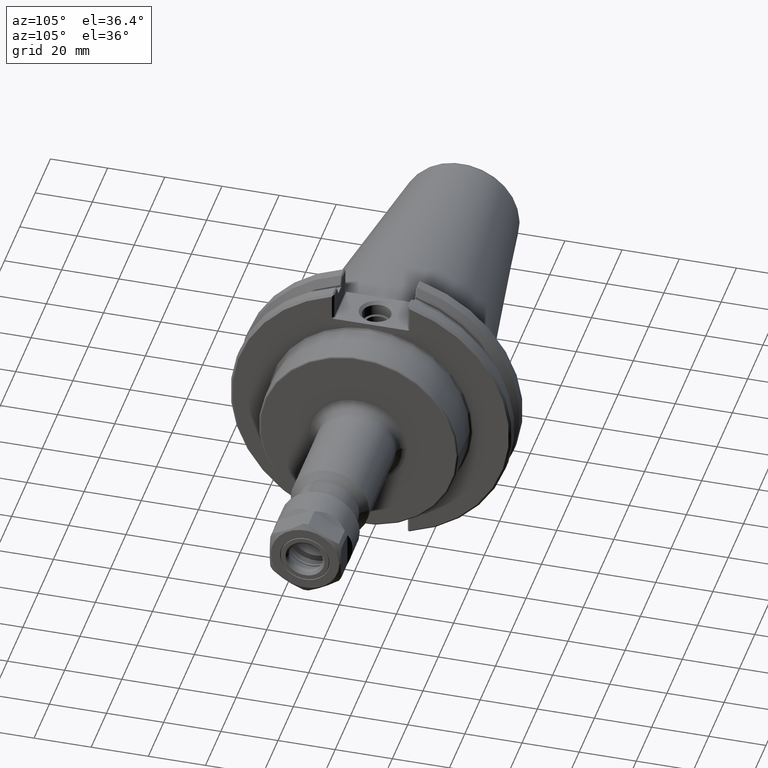
[diagram: clean part render]
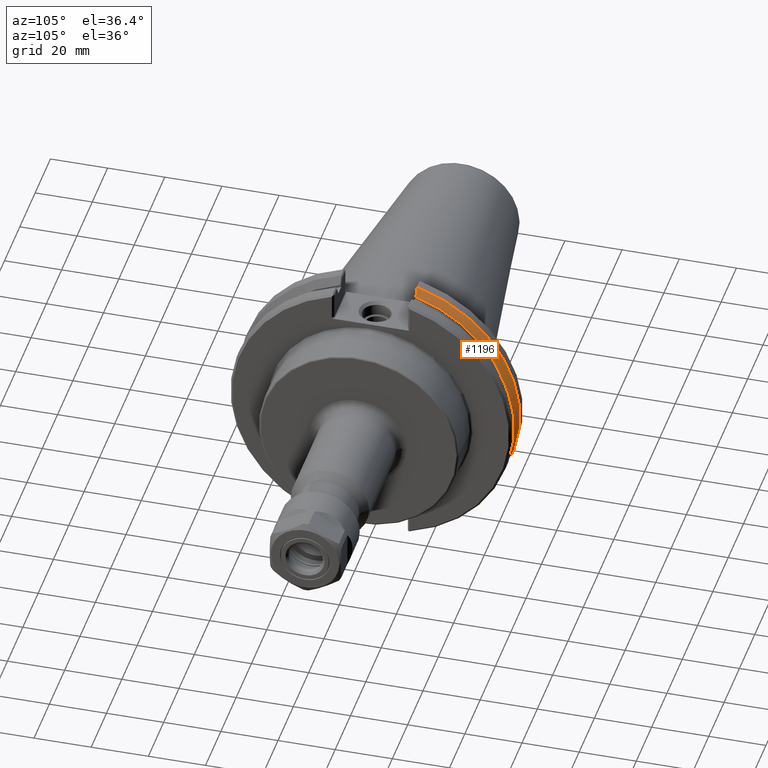
[diagram: same view with one face highlighted and labeled with its STEP entity id]
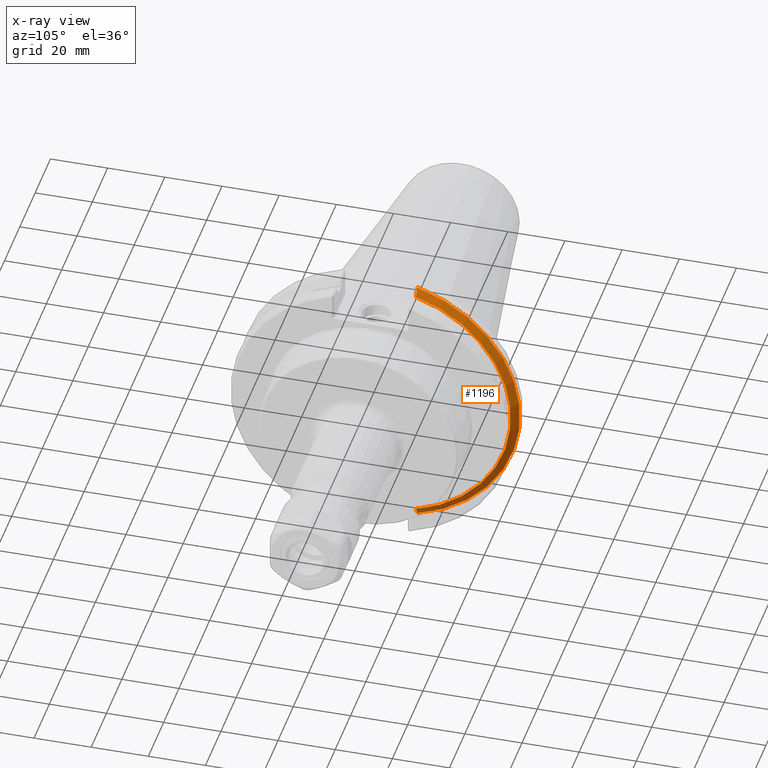
[diagram: x-ray of the same camera — body ghosted, the highlighted face saturated]
A machine part, auxiliary view. The second image highlights one B-rep face of the part: STEP entity #1196.
The next image is the same camera in x-ray: the body ghosted, the highlighted face saturated — about 2% of this face is hidden behind the body in this view.
In plain terms, the highlighted conical surface has half-angle 60 deg.
Its self-contained STEP definition (entity closure, byte-faithful):
#1006=CARTESIAN_POINT('',(0.304068067551826,0.520698365606301,-1.858051997837632));
#1007=VERTEX_POINT('',#1006);
#1017=CARTESIAN_POINT('',(0.362850000000747,0.520663228123145,-1.752094505341759));
#1018=VERTEX_POINT('',#1017);
#1019=CARTESIAN_POINT('',(0.304068067551826,0.520698365606301,-1.858051997837633));
#1020=CARTESIAN_POINT('',(0.30667620872722,0.520696621547674,-1.853361020235776));
#1021=CARTESIAN_POINT('',(0.310685816938126,0.520693976216492,-1.846147383806123));
#1022=CARTESIAN_POINT('',(0.314694106694591,0.520691388045476,-1.838932985936908));
#1023=CARTESIAN_POINT('',(0.317491406976093,0.520689595705617,-1.833897436888778));
#1024=CARTESIAN_POINT('',(0.318887156809603,0.520688708298825,-1.831384498568622));
#1025=CARTESIAN_POINT('',(0.321672886521639,0.520686951085452,-1.826368233089067));
#1026=CARTESIAN_POINT('',(0.323062867693355,0.520686081223094,-1.823864906676639));
#1027=CARTESIAN_POINT('',(0.33267914771249,0.520680111717763,-1.806543485989533));
#1028=CARTESIAN_POINT('',(0.3408998548838,0.520675253734273,-1.791722163544951));
#1029=CARTESIAN_POINT('',(0.350465060769697,0.520669905657732,-1.774459696753419));
#1030=CARTESIAN_POINT('',(0.351815568696131,0.520669157642621,-1.77202201743079));
#1031=CARTESIAN_POINT('',(0.354511070737399,0.520667678942817,-1.76715580773635));
#1032=CARTESIAN_POINT('',(0.355856066124929,0.520666948203363,-1.764727278099852));
#1033=CARTESIAN_POINT('',(0.358540573901104,0.520665504024921,-1.759879311944622));
#1034=CARTESIAN_POINT('',(0.360423707882756,0.520664500971243,-1.756477986609908));
#1035=CARTESIAN_POINT('',(0.362306505107485,0.520663512319502,-1.753076467183919));
#1036=CARTESIAN_POINT('',(0.362850000015911,0.520663228122426,-1.752094505350449));
#1037=B_SPLINE_CURVE_WITH_KNOTS('',3,(#1019,#1020,#1021,#1022,#1023,#1024,#1025,#1026,#1027,#1028,#1029,#1030,#1031,#1032,#1033,#1034,#1035,#1036),.UNSPECIFIED.,.F.,.U.,(4,1,2,2,2,2,2,2,1,4),(-0.299159352512847,-0.258268515466563,-0.236282944801271,-0.214383299034345,-0.192569056863593,-0.063448392365038,-0.042217714506755,-0.021068412462237,0.0,0.00855028025404),.UNSPECIFIED.);
#1038=EDGE_CURVE('',#1007,#1018,#1037,.T.);
#1081=CARTESIAN_POINT('',(0.362850000004089,0.520663228123905,1.752094505338514));
#1082=VERTEX_POINT('',#1081);
#1083=CARTESIAN_POINT('',(0.362849999999984,2.442670E-013,0.0));
#1084=DIRECTION('',(-1.0,-1.033610E-013,0.0));
#1085=DIRECTION('',(-1.033610E-013,1.0,0.0));
#1086=AXIS2_PLACEMENT_3D('',#1083,#1084,#1085);
#1087=CIRCLE('',#1086,1.827819835971458);
#1088=EDGE_CURVE('',#1082,#1018,#1087,.T.);
#1127=CARTESIAN_POINT('',(0.278793526957718,2.355774E-013,0.0));
#1128=DIRECTION('',(-1.0,-1.033781E-013,0.0));
#1129=DIRECTION('',(-1.033610E-013,1.0,0.0));
#1130=AXIS2_PLACEMENT_3D('',#1127,#1128,#1129);
#1131=CONICAL_SURFACE('',#1130,1.973409917985741,60.000000000005862);
#1132=ORIENTED_EDGE('',*,*,#1038,.F.);
#1133=CARTESIAN_POINT('',(0.299526127773358,0.527075588371067,-1.864429557302526));
#1134=VERTEX_POINT('',#1133);
#1135=CARTESIAN_POINT('',(0.299526127773154,0.527075588371318,-1.864429557302792));
#1136=CARTESIAN_POINT('',(0.301803169726687,0.523880490428387,-1.861234290667317));
#1137=CARTESIAN_POINT('',(0.304068067551826,0.520698365606301,-1.858051997837632));
#1145=(BOUNDED_CURVE()B_SPLINE_CURVE(2,(#1135,#1136,#1137),.UNSPECIFIED.,.F.,.U.)B_SPLINE_CURVE_WITH_KNOTS((3,3),(0.0,0.024916226268332),.UNSPECIFIED.)CURVE()GEOMETRIC_REPRESENTATION_ITEM()RATIONAL_B_SPLINE_CURVE((1.0,1.000039302347562,1.000073166576863))REPRESENTATION_ITEM(''));
#1146=EDGE_CURVE('',#1134,#1007,#1145,.T.);
#1147=ORIENTED_EDGE('',*,*,#1146,.F.);
#1148=CARTESIAN_POINT('',(0.299526127773358,0.527075588370989,1.864429557302548));
#1149=VERTEX_POINT('',#1148);
#1150=CARTESIAN_POINT('',(0.299526127773358,0.0,0.0));
#1151=DIRECTION('',(-1.0,-1.033781E-013,0.0));
#1152=DIRECTION('',(-1.033781E-013,1.0,0.0));
#1153=AXIS2_PLACEMENT_3D('',#1150,#1151,#1152);
#1154=CIRCLE('',#1153,1.9375);
#1155=EDGE_CURVE('',#1149,#1134,#1154,.T.);
#1156=ORIENTED_EDGE('',*,*,#1155,.F.);
#1157=CARTESIAN_POINT('',(0.304068067551823,0.520698365606238,1.858051997837656));
#1158=VERTEX_POINT('',#1157);
#1159=CARTESIAN_POINT('',(0.304068067551823,0.520698365606238,1.858051997837656));
#1160=CARTESIAN_POINT('',(0.301803169726687,0.52388049042832,1.861234290667336));
#1161=CARTESIAN_POINT('',(0.299526127773156,0.527075588371249,1.864429557302808));
#1169=(BOUNDED_CURVE()B_SPLINE_CURVE(2,(#1159,#1160,#1161),.UNSPECIFIED.,.F.,.U.)B_SPLINE_CURVE_WITH_KNOTS((3,3),(0.335232684670238,0.360148910938506),.UNSPECIFIED.)CURVE()GEOMETRIC_REPRESENTATION_ITEM()RATIONAL_B_SPLINE_CURVE((1.000073166577302,1.000039302347798,1.0))REPRESENTATION_ITEM(''));
#1170=EDGE_CURVE('',#1158,#1149,#1169,.T.);
#1171=ORIENTED_EDGE('',*,*,#1170,.F.);
#1172=CARTESIAN_POINT('',(0.362850000018078,0.520663228122364,1.752094505346563));
#1173=CARTESIAN_POINT('',(0.362306505108931,0.520663512319441,1.753076467181337));
#1174=CARTESIAN_POINT('',(0.36042370788346,0.520664500971182,1.756477986608669));
#1175=CARTESIAN_POINT('',(0.358540573901066,0.52066550402486,1.759879311944724));
#1176=CARTESIAN_POINT('',(0.355856066124852,0.520666948203302,1.764727278100025));
#1177=CARTESIAN_POINT('',(0.354511070737303,0.520667678942757,1.767155807736557));
#1178=CARTESIAN_POINT('',(0.351815568696,0.520669157642561,1.77202201743106));
#1179=CARTESIAN_POINT('',(0.35046506076955,0.520669905657672,1.774459696753717));
#1180=CARTESIAN_POINT('',(0.340899854883621,0.520675253734212,1.791722163545304));
#1181=CARTESIAN_POINT('',(0.332679147712292,0.520680111717698,1.80654348598991));
#1182=CARTESIAN_POINT('',(0.323062867693156,0.520686081223029,1.823864906677015));
#1183=CARTESIAN_POINT('',(0.321672886521456,0.520686951085387,1.826368233089414));
#1184=CARTESIAN_POINT('',(0.318887156809459,0.52068870829876,1.831384498568898));
#1185=CARTESIAN_POINT('',(0.317491406975972,0.520689595705552,1.833897436889012));
#1186=CARTESIAN_POINT('',(0.314694106694524,0.520691388045411,1.838932985937046));
#1187=CARTESIAN_POINT('',(0.310685816938091,0.520693976216428,1.846147383806203));
#1188=CARTESIAN_POINT('',(0.306676208727217,0.520696621547611,1.853361020235801));
#1189=CARTESIAN_POINT('',(0.304068067551823,0.520698365606238,1.858051997837656));
#1190=B_SPLINE_CURVE_WITH_KNOTS('',3,(#1172,#1173,#1174,#1175,#1176,#1177,#1178,#1179,#1180,#1181,#1182,#1183,#1184,#1185,#1186,#1187,#1188,#1189),.UNSPECIFIED.,.F.,.U.,(4,1,2,2,2,2,2,2,1,4),(-0.266818795731982,-0.258268515466589,-0.23720010300403,-0.21605080095922,-0.194820123100683,-0.065699458601868,-0.043885216431371,-0.021985570664808,0.0,0.040890837046272),.UNSPECIFIED.);
#1191=EDGE_CURVE('',#1082,#1158,#1190,.T.);
#1192=ORIENTED_EDGE('',*,*,#1191,.F.);
#1193=ORIENTED_EDGE('',*,*,#1088,.T.);
#1194=EDGE_LOOP('',(#1132,#1147,#1156,#1171,#1192,#1193));
#1195=FACE_OUTER_BOUND('',#1194,.T.);
#1196=ADVANCED_FACE('',(#1195),#1131,.T.);